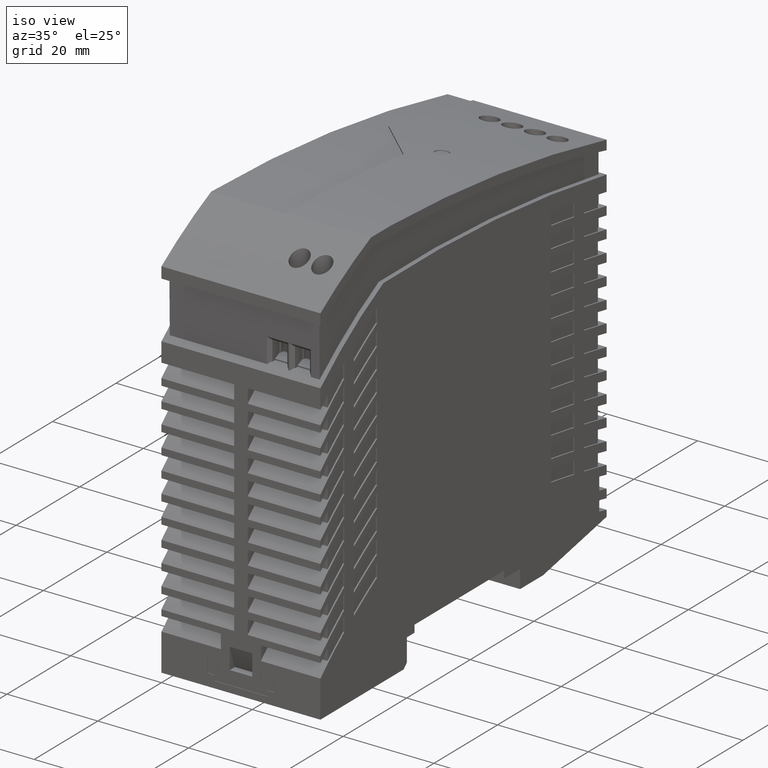
[diagram: clean part render]
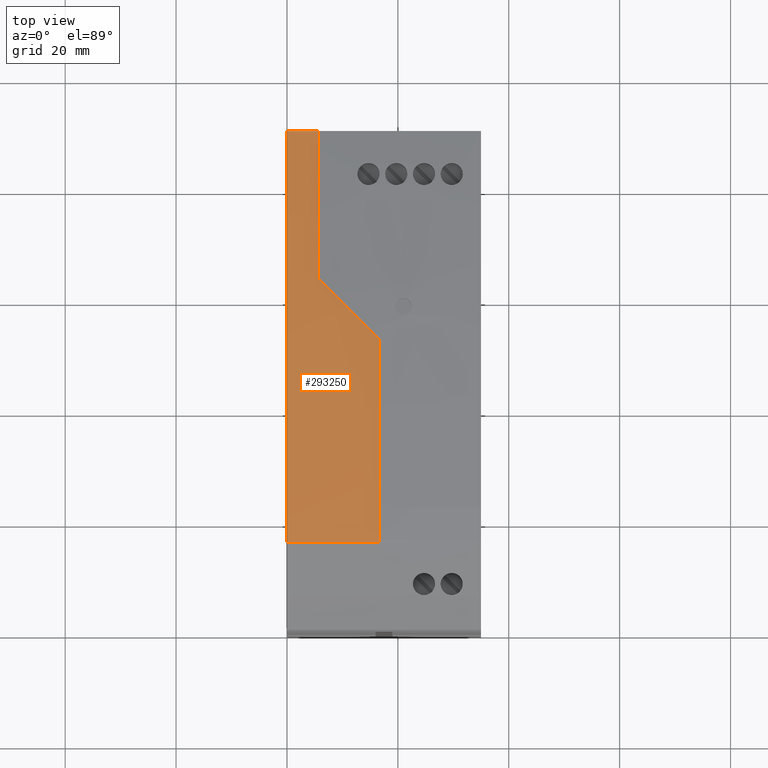
[diagram: tour spotlight — one face highlighted and labeled with its STEP entity id]
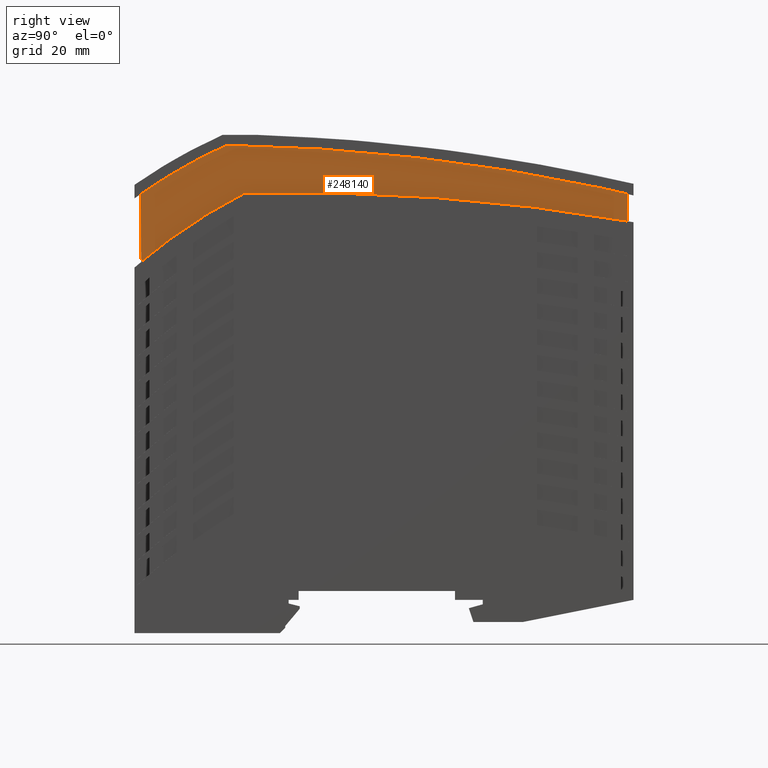
[diagram: tour spotlight — one face highlighted and labeled with its STEP entity id]
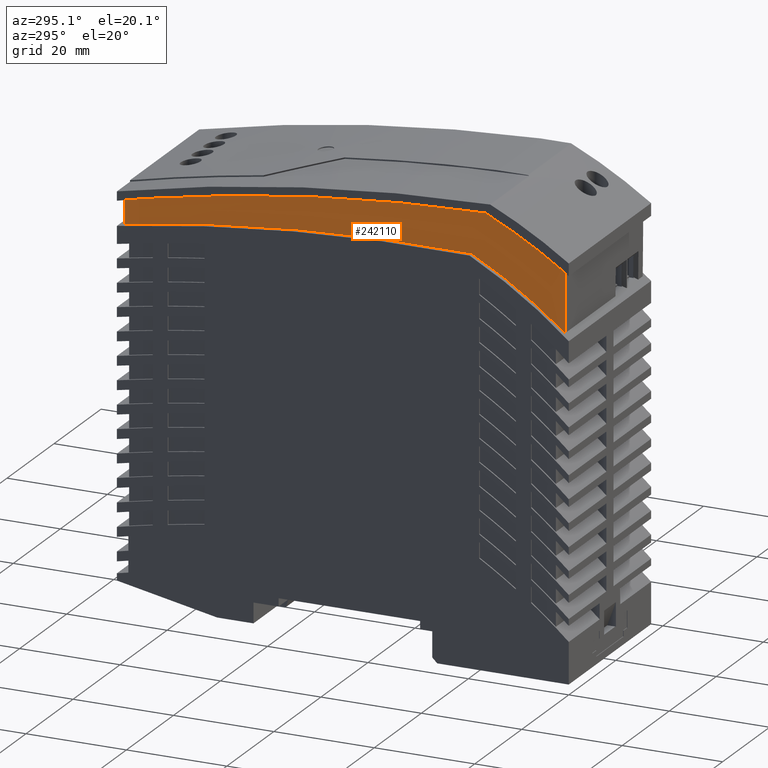
[diagram: tour spotlight — one face highlighted and labeled with its STEP entity id]
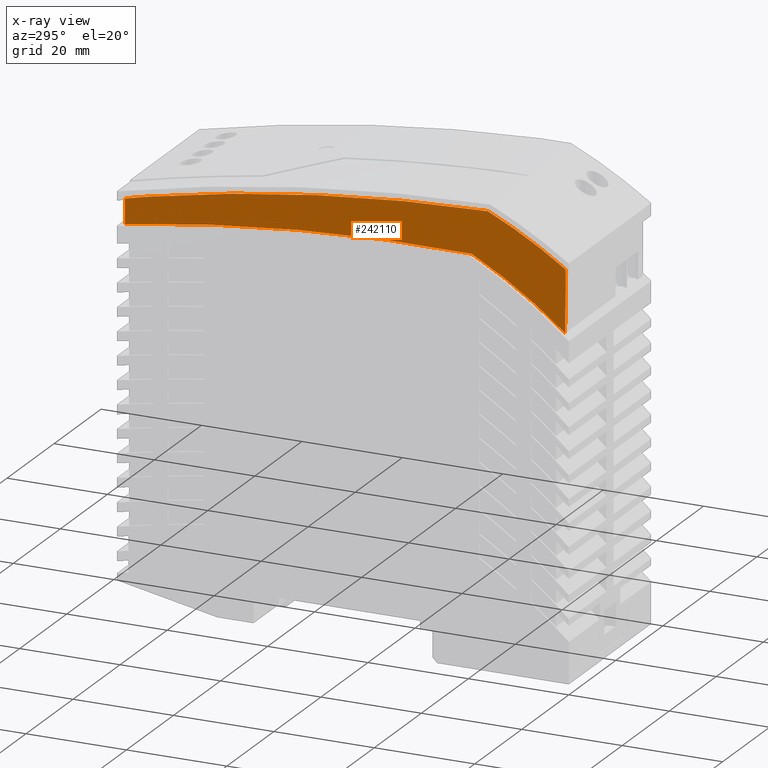
[diagram: x-ray of the same camera — body ghosted, this tour face saturated]
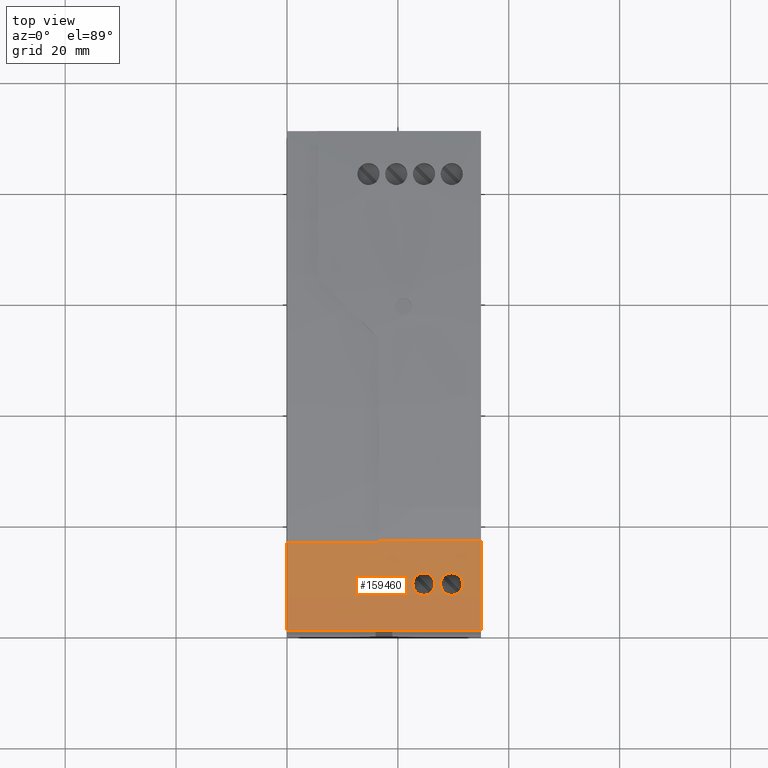
[diagram: tour spotlight — one face highlighted and labeled with its STEP entity id]
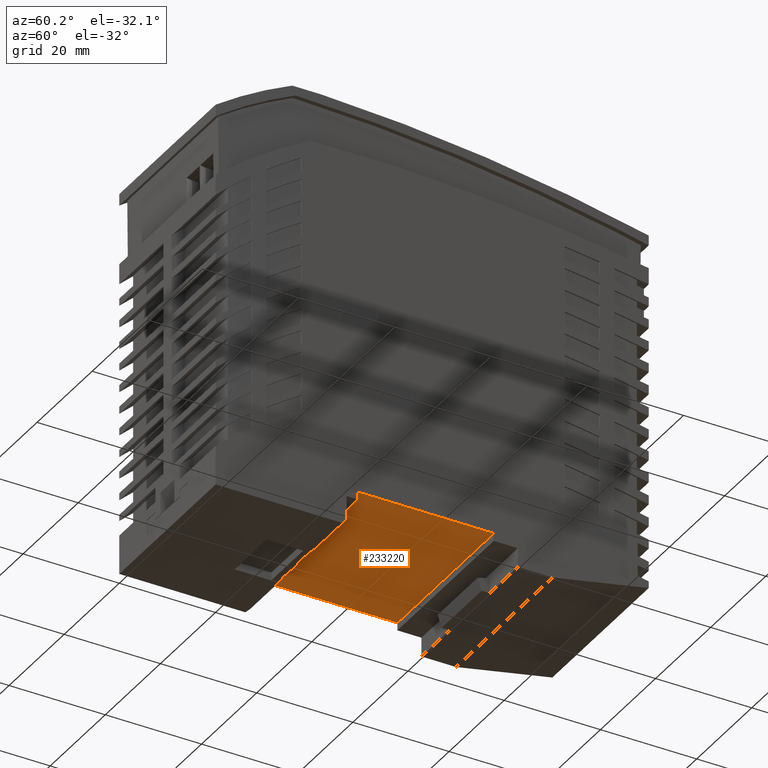
[diagram: tour spotlight — one face highlighted and labeled with its STEP entity id]
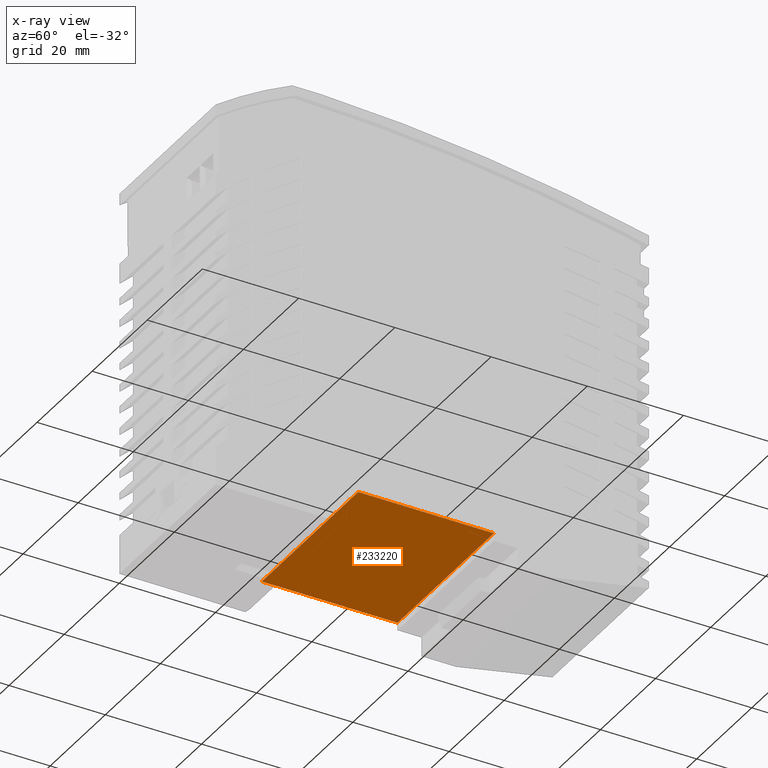
[diagram: x-ray of the same camera — body ghosted, this tour face saturated]
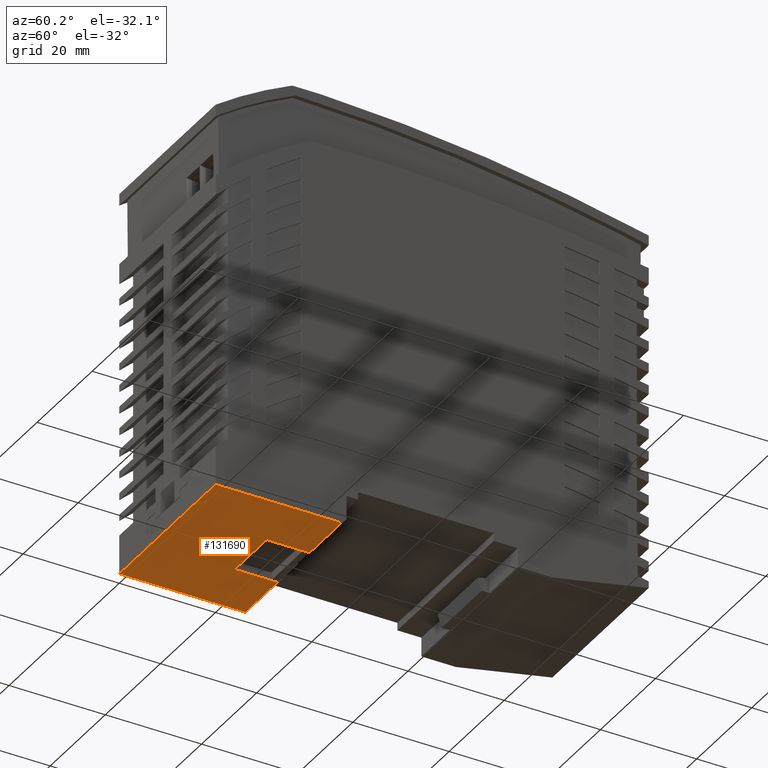
[diagram: tour spotlight — one face highlighted and labeled with its STEP entity id]
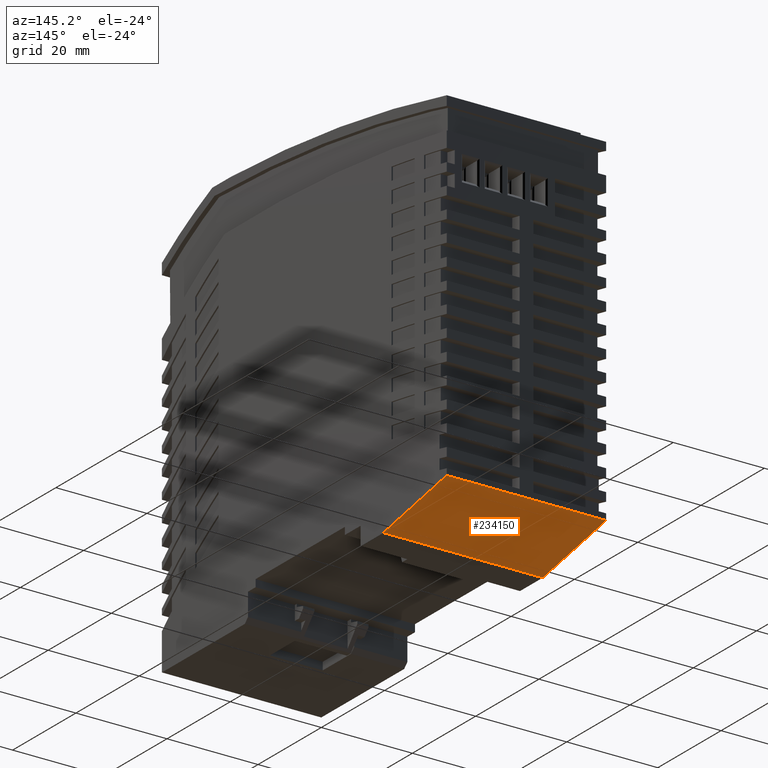
[diagram: tour spotlight — one face highlighted and labeled with its STEP entity id]
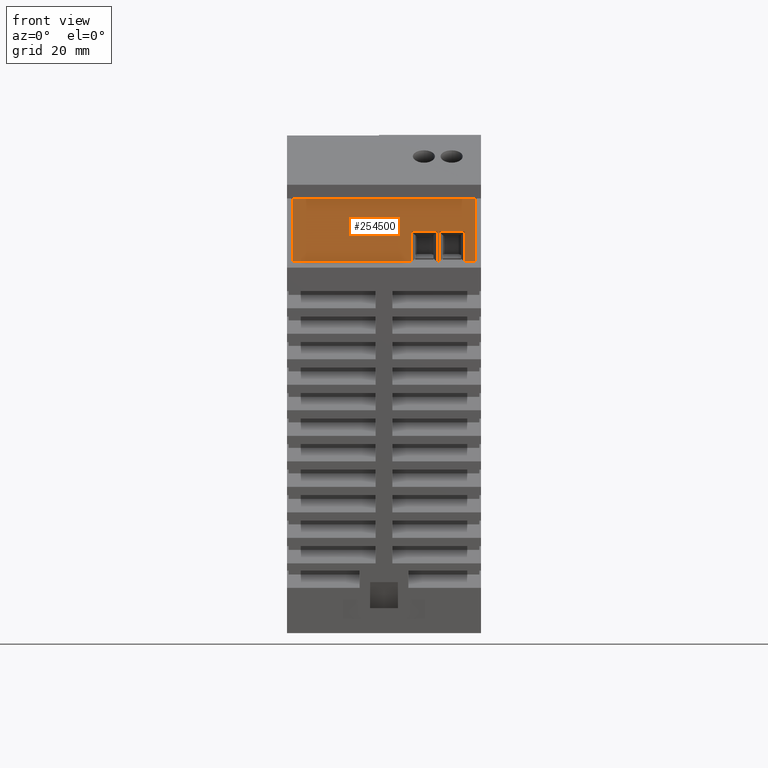
[diagram: tour spotlight — one face highlighted and labeled with its STEP entity id]
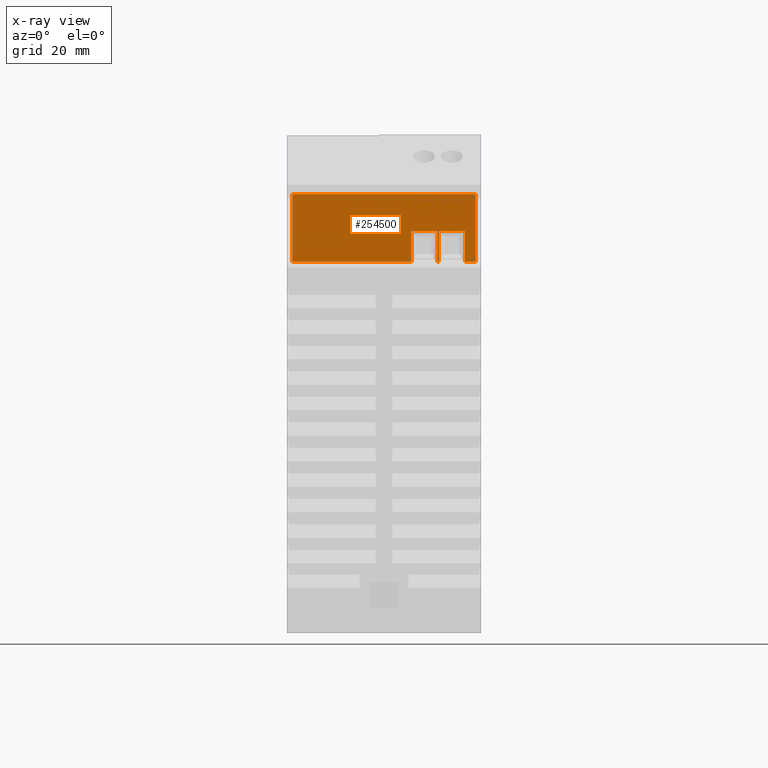
[diagram: x-ray of the same camera — body ghosted, this tour face saturated]
A machine part: a face-by-face anatomy tour. The part has 779 B-rep faces; the first image is the clean iso view, then the 8 largest visible faces are spotlighted one at a time (largest first), each with its STEP entity span.

Face 1 — top view, entity #293250. In plain terms, the highlighted cylindrical surface (partial cylindrical patch) has radius 349.75 mm, axis along (-1, 0, 0).
Definition (entity closure, byte-faithful):
#155950=CARTESIAN_POINT('',(44.9984763926466,80.7724420598919,-21.5));
#155960=VERTEX_POINT('',#155950);
#155990=CARTESIAN_POINT('',(-34.0174223565832,-259.934984106389,-21.5));
#156000=DIRECTION('',(0.,0.,-1.));
#156010=DIRECTION('',(0.149866758396655,0.988706202432087,0.));
#156020=AXIS2_PLACEMENT_3D('',#155990,#156000,#156010);
#156030=CIRCLE('',#156020,349.75);
#156040=CARTESIAN_POINT('',(-29.345667163846,89.783813220005,-21.5));
#156050=VERTEX_POINT('',#156040);
#156060=EDGE_CURVE('',#156050,#155960,#156030,.T.);
#158080=CARTESIAN_POINT('',(-29.345667163846,89.7838132200049,1.));
#158090=DIRECTION('',(0.,0.,1.));
#158100=VECTOR('',#158090,1.);
#158110=LINE('',#158080,#158100);
#158120=CARTESIAN_POINT('',(-29.345667163846,89.7838132200049,-4.9));
#158130=VERTEX_POINT('',#158120);
#158140=EDGE_CURVE('',#156050,#158130,#158110,.T.);
#260160=CARTESIAN_POINT('',(44.9984763926468,80.7724420598919,-15.9));
#260170=VERTEX_POINT('',#260160);
#260220=CARTESIAN_POINT('',(44.9984763926468,80.7724420598918,-4.9));
#260230=DIRECTION('',(0.,0.,-1.));
#260240=VECTOR('',#260230,1.);
#260250=LINE('',#260220,#260240);
#260260=EDGE_CURVE('',#260170,#155960,#260250,.T.);
#292900=CARTESIAN_POINT('',(-34.0174223565832,-259.934984106389,-4.9));
#292910=DIRECTION('',(0.,0.,-1.));
#292920=DIRECTION('',(0.149866758396655,0.988706202432087,0.));
#292930=AXIS2_PLACEMENT_3D('',#292900,#292910,#292920);
#292940=CYLINDRICAL_SURFACE('',#292930,349.75);
#292950=ORIENTED_EDGE('',*,*,#260260,.T.);
#292960=CARTESIAN_POINT('',(-34.0174223565832,-259.934984106389,-15.9));
#292970=DIRECTION('',(0.,0.,-1.));
#292980=DIRECTION('',(0.149866758396655,0.988706202432087,0.));
#292990=AXIS2_PLACEMENT_3D('',#292960,#292970,#292980);
#293000=CIRCLE('',#292990,349.75);
#293010=CARTESIAN_POINT('',(18.3984763926468,85.8650101942338,-15.9));
#293020=VERTEX_POINT('',#293010);
#293030=EDGE_CURVE('',#293020,#260170,#293000,.T.);
#293040=ORIENTED_EDGE('',*,*,#293030,.T.);
#293050=CARTESIAN_POINT('',(-34.0174223565832,-259.934984106389,
36.51589874923));
#293060=DIRECTION('',(-0.707106781186548,0.,-0.707106781186548));
#293070=DIRECTION('',(0.707106781186548,-2.59033395531104E-17,
-0.707106781186548));
#293080=AXIS2_PLACEMENT_3D('',#293050,#293060,#293070);
#293090=ELLIPSE('',#293080,494.62119343999,349.75);
#293100=CARTESIAN_POINT('',(7.39847639264678,87.3542121419162,-4.9));
#293110=VERTEX_POINT('',#293100);
#293120=EDGE_CURVE('',#293110,#293020,#293090,.T.);
#293130=ORIENTED_EDGE('',*,*,#293120,.T.);
#293140=CARTESIAN_POINT('',(-34.0174223565832,-259.934984106389,-4.9));
#293150=DIRECTION('',(0.,0.,-1.));
#293160=DIRECTION('',(0.149866758396655,0.988706202432087,0.));
#293170=AXIS2_PLACEMENT_3D('',#293140,#293150,#293160);
#293180=CIRCLE('',#293170,349.75);
#293190=EDGE_CURVE('',#158130,#293110,#293180,.T.);
#293200=ORIENTED_EDGE('',*,*,#293190,.T.);
#293210=ORIENTED_EDGE('',*,*,#158140,.T.);
#293220=ORIENTED_EDGE('',*,*,#156060,.F.);
#293230=EDGE_LOOP('',(#293220,#293210,#293200,#293130,#293040,#292950));
#293240=FACE_OUTER_BOUND('',#293230,.T.);
#293250=ADVANCED_FACE('',(#293240),#292940,.T.);

Face 2 — right view, entity #248140. In plain terms, the highlighted planar face has unit normal (1, 0, 0).
Definition (entity closure, byte-faithful):
#243480=CARTESIAN_POINT('',(-43.8004748452349,66.9911660149067,12.5));
#243490=VERTEX_POINT('',#243480);
#243520=CARTESIAN_POINT('',(19.7066423710768,-8.36763282685864,12.5));
#243530=DIRECTION('',(0.,0.,1.));
#243540=DIRECTION('',(-0.455955103889732,0.890002777095051,0.));
#243550=AXIS2_PLACEMENT_3D('',#243520,#243530,#243540);
#243560=CIRCLE('',#243550,98.55);
#243570=CARTESIAN_POINT('',(-25.2277331172552,79.3421408558592,12.5));
#243580=VERTEX_POINT('',#243570);
#243590=EDGE_CURVE('',#243580,#243490,#243560,.T.);
#247490=CARTESIAN_POINT('',(8.1380492309038,82.0977916081144,12.5));
#247500=DIRECTION('',(0.,0.,1.));
#247510=DIRECTION('',(1.,0.,0.));
#247520=AXIS2_PLACEMENT_3D('',#247490,#247500,#247510);
#247530=PLANE('',#247520);
#247540=CARTESIAN_POINT('',(43.2128045815677,0.,12.5));
#247550=DIRECTION('',(0.00872653549837375,0.999961923064171,0.));
#247560=VECTOR('',#247550,1.);
#247570=LINE('',#247540,#247560);
#247580=CARTESIAN_POINT('',(43.8615452371132,74.338316002966,12.5));
#247590=VERTEX_POINT('',#247580);
#247600=CARTESIAN_POINT('',(43.9042289013603,79.229379471612,12.5));
#247610=VERTEX_POINT('',#247600);
#247620=EDGE_CURVE('',#247590,#247610,#247570,.T.);
#247630=ORIENTED_EDGE('',*,*,#247620,.T.);
#247640=CARTESIAN_POINT('',(-15.7001371396532,-268.577429468789,12.5));
#247650=DIRECTION('',(0.,0.,1.));
#247660=DIRECTION('',(0.171523095912363,0.985180099052269,0.));
#247670=AXIS2_PLACEMENT_3D('',#247640,#247650,#247660);
#247680=CIRCLE('',#247670,348.05);
#247690=EDGE_CURVE('',#247590,#243580,#247680,.T.);
#247700=ORIENTED_EDGE('',*,*,#247690,.F.);
#247710=ORIENTED_EDGE('',*,*,#243590,.F.);
#247720=CARTESIAN_POINT('',(-43.215851796274,0.,12.5));
#247730=DIRECTION('',(0.00872653549837375,-0.999961923064171,0.));
#247740=VECTOR('',#247730,1.);
#247750=LINE('',#247720,#247740);
#247760=CARTESIAN_POINT('',(-43.9071485745402,79.2147646602632,12.5));
#247770=VERTEX_POINT('',#247760);
#247780=EDGE_CURVE('',#247770,#243490,#247750,.T.);
#247790=ORIENTED_EDGE('',*,*,#247780,.T.);
#247800=CARTESIAN_POINT('',(0.,110.04848302035,12.5));
#247810=DIRECTION('',(-0.818366609781339,-0.574696521648599,0.));
#247820=VECTOR('',#247810,1.);
#247830=LINE('',#247800,#247820);
#247840=CARTESIAN_POINT('',(-43.8015236073672,79.2889396088841,12.5));
#247850=VERTEX_POINT('',#247840);
#247860=EDGE_CURVE('',#247850,#247770,#247830,.T.);
#247870=ORIENTED_EDGE('',*,*,#247860,.T.);
#247880=CARTESIAN_POINT('',(12.017640978483,-1.26055365418858,12.5));
#247890=DIRECTION('',(0.,0.,1.));
#247900=DIRECTION('',(0.,1.,0.));
#247910=AXIS2_PLACEMENT_3D('',#247880,#247890,#247900);
#247920=CIRCLE('',#247910,97.9999999999999);
#247930=CARTESIAN_POINT('',(-28.3867095319688,88.0226388280952,12.5));
#247940=VERTEX_POINT('',#247930);
#247950=EDGE_CURVE('',#247940,#247850,#247920,.T.);
#247960=ORIENTED_EDGE('',*,*,#247950,.T.);
#247970=CARTESIAN_POINT('',(-33.8174223565965,-259.934984106387,12.5));
#247980=DIRECTION('',(0.,0.,1.));
#247990=DIRECTION('',(0.,1.,0.));
#248000=AXIS2_PLACEMENT_3D('',#247970,#247980,#247990);
#248010=CIRCLE('',#248000,347.999999999998);
#248020=CARTESIAN_POINT('',(39.218210283461,80.3146248057549,12.5));
#248030=VERTEX_POINT('',#248020);
#248040=EDGE_CURVE('',#248030,#247940,#248010,.T.);
#248050=ORIENTED_EDGE('',*,*,#248040,.T.);
#248060=CARTESIAN_POINT('',(0.,89.3972561809237,12.5));
#248070=DIRECTION('',(0.974215235442107,-0.225620644074253,0.));
#248080=VECTOR('',#248070,1.);
#248090=LINE('',#248060,#248080);
#248100=EDGE_CURVE('',#248030,#247610,#248090,.T.);
#248110=ORIENTED_EDGE('',*,*,#248100,.F.);
#248120=EDGE_LOOP('',(#248110,#248050,#247960,#247870,#247790,#247710,
#247700,#247630));
#248130=FACE_OUTER_BOUND('',#248120,.T.);
#248140=ADVANCED_FACE('',(#248130),#247530,.T.);

Face 3 — auxiliary view, entity #242110. An x-ray twin of the same camera follows (body ghosted, this face saturated) — the face is partly hidden behind the body. In plain terms, the highlighted planar face has unit normal (-1, 0, 0).
Definition (entity closure, byte-faithful):
#151480=CARTESIAN_POINT('',(-28.3867095319683,88.0226388280955,-20.5));
#151490=VERTEX_POINT('',#151480);
#151540=CARTESIAN_POINT('',(-33.8174223565965,-259.934984106387,-20.5));
#151550=DIRECTION('',(0.,0.,1.));
#151560=DIRECTION('',(0.,1.,0.));
#151570=AXIS2_PLACEMENT_3D('',#151540,#151550,#151560);
#151580=CIRCLE('',#151570,347.999999999998);
#151590=CARTESIAN_POINT('',(39.218210283461,80.3146248057549,-20.5));
#151600=VERTEX_POINT('',#151590);
#151610=EDGE_CURVE('',#151600,#151490,#151580,.T.);
#152350=CARTESIAN_POINT('',(-43.8015236073671,79.288939608884,-20.5));
#152360=VERTEX_POINT('',#152350);
#152410=CARTESIAN_POINT('',(12.017640978483,-1.26055365418858,-20.5));
#152420=DIRECTION('',(0.,0.,1.));
#152430=DIRECTION('',(0.,1.,0.));
#152440=AXIS2_PLACEMENT_3D('',#152410,#152420,#152430);
#152450=CIRCLE('',#152440,97.9999999999999);
#152460=EDGE_CURVE('',#151490,#152360,#152450,.T.);
#241540=CARTESIAN_POINT('',(8.13804923091996,82.0977916081129,-20.5));
#241550=DIRECTION('',(0.,0.,-1.));
#241560=DIRECTION('',(-1.,0.,0.));
#241570=AXIS2_PLACEMENT_3D('',#241540,#241550,#241560);
#241580=PLANE('',#241570);
#241590=CARTESIAN_POINT('',(0.,89.3972561809237,-20.5));
#241600=DIRECTION('',(0.974215235442107,-0.225620644074253,0.));
#241610=VECTOR('',#241600,1.);
#241620=LINE('',#241590,#241610);
#241630=CARTESIAN_POINT('',(43.9042289013603,79.229379471612,-20.5));
#241640=VERTEX_POINT('',#241630);
#241650=EDGE_CURVE('',#151600,#241640,#241620,.T.);
#241660=ORIENTED_EDGE('',*,*,#241650,.T.);
#241670=ORIENTED_EDGE('',*,*,#151610,.F.);
#241680=ORIENTED_EDGE('',*,*,#152460,.F.);
#241690=CARTESIAN_POINT('',(0.,110.04848302035,-20.5));
#241700=DIRECTION('',(-0.818366609781339,-0.574696521648599,0.));
#241710=VECTOR('',#241700,1.);
#241720=LINE('',#241690,#241710);
#241730=CARTESIAN_POINT('',(-43.9071485745402,79.2147646602632,-20.5));
#241740=VERTEX_POINT('',#241730);
#241750=EDGE_CURVE('',#152360,#241740,#241720,.T.);
#241760=ORIENTED_EDGE('',*,*,#241750,.F.);
#241770=CARTESIAN_POINT('',(-43.215851796274,0.,-20.5));
#241780=DIRECTION('',(0.00872653549837375,-0.999961923064171,0.));
#241790=VECTOR('',#241780,1.);
#241800=LINE('',#241770,#241790);
#241810=CARTESIAN_POINT('',(-43.8004748452349,66.9911660149067,-20.5));
#241820=VERTEX_POINT('',#241810);
#241830=EDGE_CURVE('',#241740,#241820,#241800,.T.);
#241840=ORIENTED_EDGE('',*,*,#241830,.F.);
#241850=CARTESIAN_POINT('',(19.7066423710768,-8.36763282685864,-20.5));
#241860=DIRECTION('',(0.,0.,1.));
#241870=DIRECTION('',(-0.455955103889732,0.890002777095051,0.));
#241880=AXIS2_PLACEMENT_3D('',#241850,#241860,#241870);
#241890=CIRCLE('',#241880,98.55);
#241900=CARTESIAN_POINT('',(-25.2277331172552,79.3421408558592,-20.5));
#241910=VERTEX_POINT('',#241900);
#241920=EDGE_CURVE('',#241910,#241820,#241890,.T.);
#241930=ORIENTED_EDGE('',*,*,#241920,.T.);
#241940=CARTESIAN_POINT('',(-15.7001371396532,-268.577429468789,-20.5));
#241950=DIRECTION('',(0.,0.,1.));
#241960=DIRECTION('',(0.171523095912363,0.985180099052269,0.));
#241970=AXIS2_PLACEMENT_3D('',#241940,#241950,#241960);
#241980=CIRCLE('',#241970,348.05);
#241990=CARTESIAN_POINT('',(43.8615452371132,74.338316002966,-20.5));
#242000=VERTEX_POINT('',#241990);
#242010=EDGE_CURVE('',#242000,#241910,#241980,.T.);
#242020=ORIENTED_EDGE('',*,*,#242010,.T.);
#242030=CARTESIAN_POINT('',(43.2128045815677,0.,-20.5));
#242040=DIRECTION('',(0.00872653549837375,0.999961923064171,0.));
#242050=VECTOR('',#242040,1.);
#242060=LINE('',#242030,#242050);
#242070=EDGE_CURVE('',#242000,#241640,#242060,.T.);
#242080=ORIENTED_EDGE('',*,*,#242070,.F.);
#242090=EDGE_LOOP('',(#242080,#242020,#241930,#241840,#241760,#241680,
#241670,#241660));
#242100=FACE_OUTER_BOUND('',#242090,.T.);
#242110=ADVANCED_FACE('',(#242100),#241580,.T.);

Face 4 — top view, entity #159460. In plain terms, the highlighted cylindrical surface (partial cylindrical patch) has radius 100 mm, axis along (1, 0, 0).
Definition (entity closure, byte-faithful):
#33740=CARTESIAN_POINT('',(12.017640978482,-1.26055365418718,13.5));
#33750=DIRECTION('',(0.,0.,1.));
#33760=DIRECTION('',(0.,1.,0.));
#33770=AXIS2_PLACEMENT_3D('',#33740,#33750,#33760);
#33780=CIRCLE('',#33770,99.9999999999983);
#33790=CARTESIAN_POINT('',(-29.0910272099849,89.8990722762113,13.5));
#33800=VERTEX_POINT('',#33790);
#33810=CARTESIAN_POINT('',(-45.0015236073532,80.8906171830753,13.5));
#33820=VERTEX_POINT('',#33810);
#33830=EDGE_CURVE('',#33800,#33820,#33780,.T.);
#146840=CARTESIAN_POINT('',(-36.8015236073671,78.9377474108008,3.2));
#146850=DIRECTION('',(0.,-1.,0.));
#146860=DIRECTION('',(1.,0.,0.));
#146870=AXIS2_PLACEMENT_3D('',#146840,#146850,#146860);
#146880=CYLINDRICAL_SURFACE('',#146870,2.);
#146890=CARTESIAN_POINT('',(12.017640978482,-1.26055365418719,
8.11740000000003));
#146900=DIRECTION('',(0.,0.,1.));
#146910=DIRECTION('',(0.,1.,0.));
#146920=AXIS2_PLACEMENT_3D('',#146890,#146900,#146910);
#146930=CYLINDRICAL_SURFACE('',#146920,99.9999999999983);
#146940=CARTESIAN_POINT('',(-38.4414010123486,85.0753315927208,
4.3449026581467));
#146950=CARTESIAN_POINT('',(-38.497525468706,85.0425296321924,
4.2645139655425));
#146960=CARTESIAN_POINT('',(-38.5481122803073,85.0128912388115,
4.17957684706814));
#146970=CARTESIAN_POINT('',(-38.5928971896197,84.9866110895585,
4.08937095118269));
#146980=CARTESIAN_POINT('',(-38.6376169850207,84.9603691496787,
3.99929620792909));
#146990=CARTESIAN_POINT('',(-38.6760595922823,84.937764315567,
3.90468123091588));
#147000=CARTESIAN_POINT('',(-38.7071128022955,84.9194866908906,
3.80723127403962));
#147010=CARTESIAN_POINT('',(-38.738196116276,84.9011913473048,
3.7096868460827));
#147020=CARTESIAN_POINT('',(-38.7617583110573,84.887301492932,
3.60994003546521));
#147030=CARTESIAN_POINT('',(-38.7776100394539,84.8779538440539,
3.50835436258056));
#147040=CARTESIAN_POINT('',(-38.7934808829299,84.8685949231526,
3.4066461908644));
#147050=CARTESIAN_POINT('',(-38.8015236073671,84.8638477126498,
3.30310828366254));
#147060=CARTESIAN_POINT('',(-38.8015236073671,84.8638477126498,3.2));
#147070=B_SPLINE_CURVE_WITH_KNOTS('',3,(#146940,#146950,#146960,#146970,
#146980,#146990,#147000,#147010,#147020,#147030,#147040,#147050,#147060)
,.UNSPECIFIED.,.F.,.F.,(4,3,3,3,4),(0.,0.310351874239904,
0.622414247669837,0.932684386805459,1.24270084485499),.UNSPECIFIED.);
#147080=SURFACE_CURVE('',#147070,(#146880,#146930),.CURVE_3D.);
#147090=CARTESIAN_POINT('',(-38.4414010123486,85.0753315927208,
4.34490265814672));
#147100=VERTEX_POINT('',#147090);
#147110=CARTESIAN_POINT('',(-38.8015236073671,84.8638477126498,3.2));
#147120=VERTEX_POINT('',#147110);
#147130=EDGE_CURVE('',#147100,#147120,#147080,.T.);
#147550=CARTESIAN_POINT('',(-34.8015236073671,87.1021411184533,3.2));
#147560=VERTEX_POINT('',#147550);
#147590=CARTESIAN_POINT('',(-34.8015236073671,87.1021411184533,3.2));
#147600=CARTESIAN_POINT('',(-34.8015236073671,87.1021411184533,
3.24570333218328));
#147610=CARTESIAN_POINT('',(-34.8030929677169,87.1013096419366,
3.29136936311508));
#147620=CARTESIAN_POINT('',(-34.8062074556467,87.0996592123366,
3.33679712966262));
#147630=CARTESIAN_POINT('',(-34.8347699435654,87.0845233773061,
3.75340816249707));
#147640=CARTESIAN_POINT('',(-34.9938938861023,87.0003906195661,
4.1426963124486));
#147650=CARTESIAN_POINT('',(-35.2411162250705,86.8678178703995,
4.45105107860603));
#147660=CARTESIAN_POINT('',(-35.5149705844886,86.7209637250547,
4.79262335444479));
#147670=CARTESIAN_POINT('',(-35.8831353189616,86.5216469238898,
5.02226769500543));
#147680=CARTESIAN_POINT('',(-36.2738715365213,86.3061627340214,
5.12914055790049));
#147690=CARTESIAN_POINT('',(-36.6634465287666,86.0913189396037,
5.23569580633283));
#147700=CARTESIAN_POINT('',(-37.0746906086586,85.8608345571913,
5.22210865513053));
#147710=CARTESIAN_POINT('',(-37.456775731933,85.6433132975421,
5.08961494840929));
#147720=CARTESIAN_POINT('',(-37.8397382150351,85.4252925564861,
4.95681700410168));
#147730=CARTESIAN_POINT('',(-38.1905282880909,85.2219542547977,
4.70423496391865));
#147740=CARTESIAN_POINT('',(-38.4414010123486,85.0753315927208,
4.3449026581467));
#147750=B_SPLINE_CURVE_WITH_KNOTS('',3,(#147590,#147600,#147610,#147620,
#147630,#147640,#147650,#147660,#147670,#147680,#147690,#147700,#147710,
#147720,#147730,#147740),.UNSPECIFIED.,.F.,.F.,(4,3,3,3,3,4),(0.,
0.136934001176904,1.37776613446779,2.7553206008613,4.12774155627872,
5.50714320491792),.UNSPECIFIED.);
#147760=SURFACE_CURVE('',#147750,(#146880,#146930),.CURVE_3D.);
#147770=EDGE_CURVE('',#147560,#147100,#147760,.T.);
#155690=CARTESIAN_POINT('',(-45.0015236073532,80.8906171830753,-21.5));
#155700=VERTEX_POINT('',#155690);
#156040=CARTESIAN_POINT('',(-29.345667163846,89.783813220005,-21.5));
#156050=VERTEX_POINT('',#156040);
#156080=CARTESIAN_POINT('',(12.017640978482,-1.26055365418718,-21.5));
#156090=DIRECTION('',(0.,0.,1.));
#156100=DIRECTION('',(0.,1.,0.));
#156110=AXIS2_PLACEMENT_3D('',#156080,#156090,#156100);
#156120=CIRCLE('',#156110,99.9999999999983);
#156130=EDGE_CURVE('',#156050,#155700,#156120,.T.);
#158030=CARTESIAN_POINT('',(12.017640978482,-1.26055365418718,1.));
#158040=DIRECTION('',(0.,0.,1.));
#158050=DIRECTION('',(0.,1.,0.));
#158060=AXIS2_PLACEMENT_3D('',#158030,#158040,#158050);
#158070=CYLINDRICAL_SURFACE('',#158060,99.9999999999983);
#158080=CARTESIAN_POINT('',(-29.345667163846,89.7838132200049,1.));
#158090=DIRECTION('',(0.,0.,1.));
#158100=VECTOR('',#158090,1.);
#158110=LINE('',#158080,#158100);
#158120=CARTESIAN_POINT('',(-29.345667163846,89.7838132200049,-4.9));
#158130=VERTEX_POINT('',#158120);
#158140=EDGE_CURVE('',#156050,#158130,#158110,.T.);
#158150=ORIENTED_EDGE('',*,*,#158140,.F.);
#158160=CARTESIAN_POINT('',(12.017640978482,-1.26055365418718,-4.9));
#158170=DIRECTION('',(0.,0.,1.));
#158180=DIRECTION('',(0.,1.,0.));
#158190=AXIS2_PLACEMENT_3D('',#158160,#158170,#158180);
#158200=CIRCLE('',#158190,99.9999999999983);
#158210=CARTESIAN_POINT('',(-29.0910272099849,89.8990722762113,-4.9));
#158220=VERTEX_POINT('',#158210);
#158230=EDGE_CURVE('',#158220,#158130,#158200,.T.);
#158240=ORIENTED_EDGE('',*,*,#158230,.T.);
#158250=CARTESIAN_POINT('',(-29.0910272099849,89.8990722762113,1.));
#158260=DIRECTION('',(0.,0.,-1.));
#158270=VECTOR('',#158260,1.);
#158280=LINE('',#158250,#158270);
#158290=EDGE_CURVE('',#33800,#158220,#158280,.T.);
#158300=ORIENTED_EDGE('',*,*,#158290,.T.);
#158310=ORIENTED_EDGE('',*,*,#33830,.F.);
#158320=CARTESIAN_POINT('',(-45.0015236073532,80.8906171830753,13.5));
#158330=DIRECTION('',(0.,0.,1.));
#158340=VECTOR('',#158330,1.);
#158350=LINE('',#158320,#158340);
#158360=EDGE_CURVE('',#155700,#33820,#158350,.T.);
#158370=ORIENTED_EDGE('',*,*,#158360,.T.);
#158380=ORIENTED_EDGE('',*,*,#156130,.T.);
#158390=EDGE_LOOP('',(#158380,#158370,#158310,#158300,#158240,#158150));
#158400=FACE_OUTER_BOUND('',#158390,.T.);
#158410=CARTESIAN_POINT('',(12.017640978482,-1.26055365418718,13.5));
#158420=DIRECTION('',(0.,0.,1.));
#158430=DIRECTION('',(0.,1.,0.));
#158440=AXIS2_PLACEMENT_3D('',#158410,#158420,#158430);
#158450=CYLINDRICAL_SURFACE('',#158440,99.9999999999983);
#158460=CARTESIAN_POINT('',(-36.8015236073671,78.9377474108009,8.2));
#158470=DIRECTION('',(0.,-1.,0.));
#158480=DIRECTION('',(1.,0.,0.));
#158490=AXIS2_PLACEMENT_3D('',#158460,#158470,#158480);
#158500=CYLINDRICAL_SURFACE('',#158490,2.);
#158510=CARTESIAN_POINT('',(-38.4414010123466,85.075331592722,
9.34490265814964));
#158520=CARTESIAN_POINT('',(-38.1916399297802,85.2213045553765,
9.70264272716635));
#158530=CARTESIAN_POINT('',(-37.8405312536078,85.4248265797964,
9.95597746596343));
#158540=CARTESIAN_POINT('',(-37.4592635155472,85.6418969538847,
10.0887504369787));
#158550=CARTESIAN_POINT('',(-37.0755907906413,85.8603365793993,
10.2223609224669));
#158560=CARTESIAN_POINT('',(-36.6638870952883,86.0910703282855,
10.2356051164462));
#158570=CARTESIAN_POINT('',(-36.2748448652582,86.3056259531921,
10.1294065156443));
#158580=CARTESIAN_POINT('',(-35.8823355676247,86.5220936555002,
10.022261493863));
#158590=CARTESIAN_POINT('',(-35.5150580771803,86.7209175869031,
9.79284153816682));
#158600=CARTESIAN_POINT('',(-35.2409214758194,86.8679223042267,
9.45080813357369));
#158610=CARTESIAN_POINT('',(-34.9942751900424,87.0001854436235,
9.14307371053144));
#158620=CARTESIAN_POINT('',(-34.8347585509382,87.0845294180424,
8.75362569495889));
#158630=CARTESIAN_POINT('',(-34.8061988678249,87.099663763195,
8.33667181044786));
#158640=CARTESIAN_POINT('',(-34.8030854753445,87.1013136119069,
8.29121818676455));
#158650=CARTESIAN_POINT('',(-34.8015236073671,87.1021411184533,
8.24559271433282));
#158660=CARTESIAN_POINT('',(-34.8015236073671,87.1021411184533,8.2));
#158670=B_SPLINE_CURVE_WITH_KNOTS('',3,(#158510,#158520,#158530,#158540,
#158550,#158560,#158570,#158580,#158590,#158600,#158610,#158620,#158630,
#158640,#158650,#158660),.UNSPECIFIED.,.F.,.F.,(4,3,3,3,3,4),(0.,
1.37640965345925,2.75067905799001,4.12970540128264,5.37033487401065,
5.50714317967587),.UNSPECIFIED.);
#158680=SURFACE_CURVE('',#158670,(#158450,#158500),.CURVE_3D.);
#158690=CARTESIAN_POINT('',(-38.4414010123466,85.075331592722,
9.34490265814962));
#158700=VERTEX_POINT('',#158690);
#158710=CARTESIAN_POINT('',(-34.8015236073671,87.1021411184533,8.2));
#158720=VERTEX_POINT('',#158710);
#158730=EDGE_CURVE('',#158700,#158720,#158680,.T.);
#158740=ORIENTED_EDGE('',*,*,#158730,.F.);
#158750=CARTESIAN_POINT('',(-34.8015236073671,87.1021411184533,8.2));
#158760=CARTESIAN_POINT('',(-34.8015236073671,87.1021411184533,
7.9172872689588));
#158770=CARTESIAN_POINT('',(-34.8618106636273,87.0702641101032,
7.6392638737912));
#158780=CARTESIAN_POINT('',(-34.9746908483369,87.0101705383661,
7.38594713283819));
#158790=CARTESIAN_POINT('',(-35.0864556906266,86.9506707370051,
7.13513335471759));
#158800=CARTESIAN_POINT('',(-35.2477752789304,86.8645176253473,
6.91360186919473));
#158810=CARTESIAN_POINT('',(-35.4401417351855,86.760800913338,
6.73485857402926));
#158820=CARTESIAN_POINT('',(-35.8258464055154,86.5528435542846,
6.37646904459866));
#158830=CARTESIAN_POINT('',(-36.3222718109873,86.2812395930999,
6.19787741695517));
#158840=CARTESIAN_POINT('',(-36.8103010461347,86.008181169045,
6.20001926095066));
#158850=CARTESIAN_POINT('',(-37.298221630768,85.7351835363035,
6.20216062810494));
#158860=CARTESIAN_POINT('',(-37.7899139519458,85.4539201558912,
6.38515360185494));
#158870=CARTESIAN_POINT('',(-38.1694024298831,85.2337275089428,
6.74092237118376));
#158880=CARTESIAN_POINT('',(-38.3597034912399,85.1233080974101,
6.91932877437395));
#158890=CARTESIAN_POINT('',(-38.5182149661032,85.0304885119995,
7.13773019329068));
#158900=CARTESIAN_POINT('',(-38.6296235794948,84.9650492303044,
7.38879688615798));
#158910=CARTESIAN_POINT('',(-38.7416663307256,84.8992374682111,
7.64129265066762));
#158920=CARTESIAN_POINT('',(-38.8015236073671,84.8638477126498,
7.91845230797725));
#158930=CARTESIAN_POINT('',(-38.8015236073671,84.8638477126498,8.2));
#158940=B_SPLINE_CURVE_WITH_KNOTS('',3,(#158750,#158760,#158770,#158780,
#158790,#158800,#158810,#158820,#158830,#158840,#158850,#158860,#158870,
#158880,#158890,#158900,#158910,#158920,#158930),.UNSPECIFIED.,.F.,.F.,(
4,3,3,3,3,3,4),(0.,0.84500756333785,1.68943431270763,3.37484337737721,
5.06208987075319,5.90700425554802,6.75028831396443),.UNSPECIFIED.);
#158950=SURFACE_CURVE('',#158940,(#158450,#158500),.CURVE_3D.);
#158960=CARTESIAN_POINT('',(-38.8015236073671,84.8638477126498,8.2));
#158970=VERTEX_POINT('',#158960);
#158980=EDGE_CURVE('',#158720,#158970,#158950,.T.);
#158990=ORIENTED_EDGE('',*,*,#158980,.F.);
#159000=CARTESIAN_POINT('',(-38.8015236073671,84.8638477126498,8.2));
#159010=CARTESIAN_POINT('',(-38.8015236073671,84.8638477126498,
8.30291970855927));
#159020=CARTESIAN_POINT('',(-38.7935148856833,84.8685748905205,
8.40658960905533));
#159030=CARTESIAN_POINT('',(-38.77753569418,84.8779976848778,
8.5088304272078));
#159040=CARTESIAN_POINT('',(-38.7615569290885,84.8874202277835,
8.61106851701849));
#159050=CARTESIAN_POINT('',(-38.73764590357,84.9015153813996,
8.71162340845735));
#159060=CARTESIAN_POINT('',(-38.7067292453512,84.9197124477178,
8.80843362579134));
#159070=CARTESIAN_POINT('',(-38.6758918301042,84.9378628728498,
8.90499570733787));
#159080=CARTESIAN_POINT('',(-38.6379074511667,84.9601984217421,
8.99860885550979));
#159090=CARTESIAN_POINT('',(-38.5932981280277,84.9863758143853,
9.08856292242724));
#159100=CARTESIAN_POINT('',(-38.5487149271022,85.0125378781378,
9.17846431427196));
#159110=CARTESIAN_POINT('',(-38.4976518360517,85.0424557767477,
9.26433296591512));
#159120=CARTESIAN_POINT('',(-38.4414010123466,85.075331592722,
9.34490265814965));
#159130=B_SPLINE_CURVE_WITH_KNOTS('',3,(#159000,#159010,#159020,#159030,
#159040,#159050,#159060,#159070,#159080,#159090,#159100,#159110,#159120)
,.UNSPECIFIED.,.F.,.F.,(4,3,3,3,4),(0.,0.310500280495427,
0.621568672458265,0.931416759487738,1.24270084360459),.UNSPECIFIED.);
#159140=SURFACE_CURVE('',#159130,(#158450,#158500),.CURVE_3D.);
#159150=EDGE_CURVE('',#158970,#158700,#159140,.T.);
#159160=ORIENTED_EDGE('',*,*,#159150,.F.);
#159170=EDGE_LOOP('',(#159160,#158990,#158740));
#159180=FACE_BOUND('',#159170,.T.);
#159190=CARTESIAN_POINT('',(-38.8015236073671,84.8638477126498,3.2));
#159200=CARTESIAN_POINT('',(-38.8015236073671,84.8638477126498,
2.91759915508747));
#159210=CARTESIAN_POINT('',(-38.7404421313602,84.8999567510371,
2.63843223587455));
#159220=CARTESIAN_POINT('',(-38.6295012324462,84.9651210944961,
2.38852122504005));
#159230=CARTESIAN_POINT('',(-38.5178353889127,85.0307112551301,
2.13697716774191));
#159240=CARTESIAN_POINT('',(-38.3585181299655,85.1239942593898,
1.91835311454325));
#159250=CARTESIAN_POINT('',(-38.1699598082352,85.2334040958938,
1.74144511102476));
#159260=CARTESIAN_POINT('',(-37.7903991705173,85.4536418819271,
1.38533611505636));
#159270=CARTESIAN_POINT('',(-37.2998179867703,85.7342895335559,
1.20219494021424));
#159280=CARTESIAN_POINT('',(-36.8104126189879,86.0081187425111,
1.20001975372945));
#159290=CARTESIAN_POINT('',(-36.3222906568811,86.2812298678817,
1.19785027140499));
#159300=CARTESIAN_POINT('',(-35.8252295299098,86.5531777539622,
1.37690310189351));
#159310=CARTESIAN_POINT('',(-35.4398578332964,86.7609539819011,
1.7351224215876));
#159320=CARTESIAN_POINT('',(-35.2469430083834,86.8649655504365,
1.91444492489157));
#159330=CARTESIAN_POINT('',(-35.0868348665167,86.9504691123241,
2.13416218057571));
#159340=CARTESIAN_POINT('',(-34.974546405634,87.0102474345981,
2.38627135705478));
#159350=CARTESIAN_POINT('',(-34.8618808570722,87.0702265047374,
2.63922716784965));
#159360=CARTESIAN_POINT('',(-34.8015236073671,87.1021411184533,
2.9163591830023));
#159370=CARTESIAN_POINT('',(-34.8015236073671,87.1021411184533,3.2));
#159380=B_SPLINE_CURVE_WITH_KNOTS('',3,(#159190,#159200,#159210,#159220,
#159230,#159240,#159250,#159260,#159270,#159280,#159290,#159300,#159310,
#159320,#159330,#159340,#159350,#159360,#159370),.UNSPECIFIED.,.F.,.F.,(
4,3,3,3,3,3,4),(0.,0.843594027500314,1.68736858919655,3.37531788904383,
5.06127204508721,5.90564525478496,6.75028970198062),.UNSPECIFIED.);
#159390=SURFACE_CURVE('',#159380,(#146880,#146930),.CURVE_3D.);
#159400=EDGE_CURVE('',#147120,#147560,#159390,.T.);
#159410=ORIENTED_EDGE('',*,*,#159400,.T.);
#159420=ORIENTED_EDGE('',*,*,#147130,.T.);
#159430=ORIENTED_EDGE('',*,*,#147770,.T.);
#159440=EDGE_LOOP('',(#159430,#159420,#159410));
#159450=FACE_BOUND('',#159440,.T.);
#159460=ADVANCED_FACE('',(#158400,#159180,#159450),#158070,.T.);

Face 5 — auxiliary view, entity #233220. An x-ray twin of the same camera follows (body ghosted, this face saturated) — the face is partly hidden behind the body. In plain terms, the highlighted planar face has unit normal (0, 0, -1).
Definition (entity closure, byte-faithful):
#196190=CARTESIAN_POINT('',(12.7984763926468,7.62907227621024,13.5));
#196200=VERTEX_POINT('',#196190);
#196230=CARTESIAN_POINT('',(0.,7.62907227621024,13.5));
#196240=DIRECTION('',(1.,0.,0.));
#196250=VECTOR('',#196240,1.);
#196260=LINE('',#196230,#196250);
#196270=CARTESIAN_POINT('',(-15.4015236073532,7.62907227621024,13.5));
#196280=VERTEX_POINT('',#196270);
#196290=EDGE_CURVE('',#196280,#196200,#196260,.T.);
#232780=CARTESIAN_POINT('',(12.7984763926468,7.62907227621024,-21.5));
#232790=VERTEX_POINT('',#232780);
#232820=CARTESIAN_POINT('',(12.7984763926468,7.62907227621024,16.25));
#232830=DIRECTION('',(0.,0.,-1.));
#232840=VECTOR('',#232830,1.);
#232850=LINE('',#232820,#232840);
#232860=EDGE_CURVE('',#196200,#232790,#232850,.T.);
#232990=CARTESIAN_POINT('',(-16.1806586073671,7.62907227621024,
-36.0591349974895));
#233000=DIRECTION('',(0.,-1.,0.));
#233010=DIRECTION('',(1.,0.,0.));
#233020=AXIS2_PLACEMENT_3D('',#232990,#233000,#233010);
#233030=PLANE('',#233020);
#233040=ORIENTED_EDGE('',*,*,#232860,.F.);
#233050=CARTESIAN_POINT('',(0.,7.62907227621024,-21.5));
#233060=DIRECTION('',(-1.,0.,0.));
#233070=VECTOR('',#233060,1.);
#233080=LINE('',#233050,#233070);
#233090=CARTESIAN_POINT('',(-15.4015236073532,7.62907227621024,-21.5));
#233100=VERTEX_POINT('',#233090);
#233110=EDGE_CURVE('',#232790,#233100,#233080,.T.);
#233120=ORIENTED_EDGE('',*,*,#233110,.F.);
#233130=CARTESIAN_POINT('',(-15.4015236073532,7.62907227621024,28.75));
#233140=DIRECTION('',(0.,0.,1.));
#233150=VECTOR('',#233140,1.);
#233160=LINE('',#233130,#233150);
#233170=EDGE_CURVE('',#233100,#196280,#233160,.T.);
#233180=ORIENTED_EDGE('',*,*,#233170,.F.);
#233190=ORIENTED_EDGE('',*,*,#196290,.F.);
#233200=EDGE_LOOP('',(#233190,#233180,#233120,#233040));
#233210=FACE_OUTER_BOUND('',#233200,.T.);
#233220=ADVANCED_FACE('',(#233210),#233030,.T.);

Face 6 — auxiliary view, entity #131690. In plain terms, the highlighted planar face has unit normal (0, 0, -1).
Definition (entity closure, byte-faithful):
#8660=CARTESIAN_POINT('',(-45.0015236073532,0.029072276211352,13.5));
#8670=VERTEX_POINT('',#8660);
#8700=CARTESIAN_POINT('',(-45.0015236073532,0.029072276211352,28.75));
#8710=DIRECTION('',(0.,0.,1.));
#8720=VECTOR('',#8710,1.);
#8730=LINE('',#8700,#8720);
#8740=CARTESIAN_POINT('',(-45.0015236073532,0.029072276211352,-21.5));
#8750=VERTEX_POINT('',#8740);
#8760=EDGE_CURVE('',#8750,#8670,#8730,.T.);
#100220=CARTESIAN_POINT('',(-18.8015236073701,0.029072276211352,16.25));
#100230=DIRECTION('',(0.,0.,-1.));
#100240=VECTOR('',#100230,1.);
#100250=LINE('',#100220,#100240);
#100260=CARTESIAN_POINT('',(-18.8015236073701,0.029072276211352,-9.8));
#100270=VERTEX_POINT('',#100260);
#100280=CARTESIAN_POINT('',(-18.8015236073701,0.029072276211352,-21.5));
#100290=VERTEX_POINT('',#100280);
#100300=EDGE_CURVE('',#100270,#100290,#100250,.T.);
#131160=CARTESIAN_POINT('',(-45.6666036073671,0.029072276211352,
-26.61008));
#131170=DIRECTION('',(0.,-1.,0.));
#131180=DIRECTION('',(1.,0.,0.));
#131190=AXIS2_PLACEMENT_3D('',#131160,#131170,#131180);
#131200=PLANE('',#131190);
#131210=CARTESIAN_POINT('',(-18.8015236073701,0.029072276211352,6.25));
#131220=DIRECTION('',(0.,0.,-1.));
#131230=VECTOR('',#131220,1.);
#131240=LINE('',#131210,#131230);
#131250=CARTESIAN_POINT('',(-18.8015236073701,0.029072276211352,13.5));
#131260=VERTEX_POINT('',#131250);
#131270=CARTESIAN_POINT('',(-18.8015236073701,0.029072276211352,1.8));
#131280=VERTEX_POINT('',#131270);
#131290=EDGE_CURVE('',#131260,#131280,#131240,.T.);
#131300=ORIENTED_EDGE('',*,*,#131290,.F.);
#131310=CARTESIAN_POINT('',(0.,0.029072276211352,1.8));
#131320=DIRECTION('',(1.,0.,0.));
#131330=VECTOR('',#131320,1.);
#131340=LINE('',#131310,#131330);
#131350=CARTESIAN_POINT('',(-27.7015236073701,0.029072276211352,1.8));
#131360=VERTEX_POINT('',#131350);
#131370=EDGE_CURVE('',#131360,#131280,#131340,.T.);
#131380=ORIENTED_EDGE('',*,*,#131370,.T.);
#131390=CARTESIAN_POINT('',(-27.7015236073701,0.029072276211352,22.5));
#131400=DIRECTION('',(0.,0.,-1.));
#131410=VECTOR('',#131400,1.);
#131420=LINE('',#131390,#131410);
#131430=CARTESIAN_POINT('',(-27.7015236073701,0.029072276211352,-9.8));
#131440=VERTEX_POINT('',#131430);
#131450=EDGE_CURVE('',#131360,#131440,#131420,.T.);
#131460=ORIENTED_EDGE('',*,*,#131450,.F.);
#131470=CARTESIAN_POINT('',(0.,0.029072276211352,-9.8));
#131480=DIRECTION('',(-1.,0.,0.));
#131490=VECTOR('',#131480,1.);
#131500=LINE('',#131470,#131490);
#131510=EDGE_CURVE('',#100270,#131440,#131500,.T.);
#131520=ORIENTED_EDGE('',*,*,#131510,.T.);
#131530=ORIENTED_EDGE('',*,*,#100300,.F.);
#131540=CARTESIAN_POINT('',(0.,0.029072276211352,-21.5));
#131550=DIRECTION('',(-1.,0.,0.));
#131560=VECTOR('',#131550,1.);
#131570=LINE('',#131540,#131560);
#131580=EDGE_CURVE('',#100290,#8750,#131570,.T.);
#131590=ORIENTED_EDGE('',*,*,#131580,.F.);
#131600=ORIENTED_EDGE('',*,*,#8760,.F.);
#131610=CARTESIAN_POINT('',(0.,0.029072276211352,13.5));
#131620=DIRECTION('',(1.,0.,0.));
#131630=VECTOR('',#131620,1.);
#131640=LINE('',#131610,#131630);
#131650=EDGE_CURVE('',#8670,#131260,#131640,.T.);
#131660=ORIENTED_EDGE('',*,*,#131650,.F.);
#131670=EDGE_LOOP('',(#131660,#131600,#131590,#131530,#131520,#131460,
#131380,#131300));
#131680=FACE_OUTER_BOUND('',#131670,.T.);
#131690=ADVANCED_FACE('',(#131680),#131200,.T.);

Face 7 — auxiliary view, entity #234150. In plain terms, the highlighted planar face has unit normal (0, -0.1961, 0.9806).
Definition (entity closure, byte-faithful):
#195880=CARTESIAN_POINT('',(44.9984763926468,6.02907227620774,13.5));
#195890=VERTEX_POINT('',#195880);
#195920=CARTESIAN_POINT('',(0.,-2.97062300232254,13.5));
#195930=DIRECTION('',(-0.980580675690916,-0.196116135138203,0.));
#195940=VECTOR('',#195930,1.);
#195950=LINE('',#195920,#195940);
#195960=CARTESIAN_POINT('',(24.998476392667,2.02907227621137,13.5));
#195970=VERTEX_POINT('',#195960);
#195980=EDGE_CURVE('',#195890,#195970,#195950,.T.);
#231880=CARTESIAN_POINT('',(24.998476392667,2.02907227621137,16.25));
#231890=DIRECTION('',(0.,0.,-1.));
#231900=VECTOR('',#231890,1.);
#231910=LINE('',#231880,#231900);
#231920=CARTESIAN_POINT('',(24.998476392667,2.02907227621137,-21.5));
#231930=VERTEX_POINT('',#231920);
#231940=EDGE_CURVE('',#195970,#231930,#231910,.T.);
#233920=CARTESIAN_POINT('',(24.998476392667,2.02907227621137,-25.25));
#233930=DIRECTION('',(-0.196116135138203,0.980580675690916,0.));
#233940=DIRECTION('',(-0.980580675690916,-0.196116135138203,0.));
#233950=AXIS2_PLACEMENT_3D('',#233920,#233930,#233940);
#233960=PLANE('',#233950);
#233970=CARTESIAN_POINT('',(44.9984763926468,6.02907227620774,28.75));
#233980=DIRECTION('',(0.,0.,1.));
#233990=VECTOR('',#233980,1.);
#234000=LINE('',#233970,#233990);
#234010=CARTESIAN_POINT('',(44.9984763926468,6.02907227620773,-21.5));
#234020=VERTEX_POINT('',#234010);
#234030=EDGE_CURVE('',#234020,#195890,#234000,.T.);
#234040=ORIENTED_EDGE('',*,*,#234030,.T.);
#234050=CARTESIAN_POINT('',(0.,-2.97062300232254,-21.5));
#234060=DIRECTION('',(0.980580675690916,0.196116135138203,0.));
#234070=VECTOR('',#234060,1.);
#234080=LINE('',#234050,#234070);
#234090=EDGE_CURVE('',#231930,#234020,#234080,.T.);
#234100=ORIENTED_EDGE('',*,*,#234090,.T.);
#234110=ORIENTED_EDGE('',*,*,#231940,.T.);
#234120=ORIENTED_EDGE('',*,*,#195980,.T.);
#234130=EDGE_LOOP('',(#234120,#234110,#234100,#234040));
#234140=FACE_OUTER_BOUND('',#234130,.T.);
#234150=ADVANCED_FACE('',(#234140),#233960,.F.);

Face 8 — front view, entity #254500. An x-ray twin of the same camera follows (body ghosted, this face saturated) — the face is partly hidden behind the body. In plain terms, the highlighted planar face has unit normal (0, -1, -0.0087).
Definition (entity closure, byte-faithful):
#241730=CARTESIAN_POINT('',(-43.9071485745402,79.2147646602632,-20.5));
#241740=VERTEX_POINT('',#241730);
#241770=CARTESIAN_POINT('',(-43.215851796274,0.,-20.5));
#241780=DIRECTION('',(0.00872653549837375,-0.999961923064171,0.));
#241790=VECTOR('',#241780,1.);
#241800=LINE('',#241770,#241790);
#241810=CARTESIAN_POINT('',(-43.8004748452349,66.9911660149067,-20.5));
#241820=VERTEX_POINT('',#241810);
#241830=EDGE_CURVE('',#241740,#241820,#241800,.T.);
#242400=CARTESIAN_POINT('',(-43.8004748452349,66.9911660149067,-31.475))
;
#242410=DIRECTION('',(0.,0.,1.));
#242420=VECTOR('',#242410,1.);
#242430=LINE('',#242400,#242420);
#242440=CARTESIAN_POINT('',(-43.8004748452349,66.9911660149067,
0.929370883150533));
#242450=VERTEX_POINT('',#242440);
#242460=EDGE_CURVE('',#241820,#242450,#242430,.T.);
#242880=CARTESIAN_POINT('',(-43.8004748452349,66.9911660149067,
5.62062911684946));
#242890=VERTEX_POINT('',#242880);
#242920=CARTESIAN_POINT('',(-43.8004748452349,66.9911660149067,-41.5));
#242930=DIRECTION('',(0.,0.,1.));
#242940=VECTOR('',#242930,1.);
#242950=LINE('',#242920,#242940);
#242960=CARTESIAN_POINT('',(-43.8004748452349,66.9911660149066,
5.90437088315048));
#242970=VERTEX_POINT('',#242960);
#242980=EDGE_CURVE('',#242890,#242970,#242950,.T.);
#243400=CARTESIAN_POINT('',(-43.8004748452349,66.9911660149066,
10.5956291168495));
#243410=VERTEX_POINT('',#243400);
#243440=CARTESIAN_POINT('',(-43.8004748452349,66.9911660149067,-41.5));
#243450=DIRECTION('',(0.,0.,1.));
#243460=VECTOR('',#243450,1.);
#243470=LINE('',#243440,#243460);
#243480=CARTESIAN_POINT('',(-43.8004748452349,66.9911660149067,12.5));
#243490=VERTEX_POINT('',#243480);
#243500=EDGE_CURVE('',#243410,#243490,#243470,.T.);
#247720=CARTESIAN_POINT('',(-43.215851796274,0.,12.5));
#247730=DIRECTION('',(0.00872653549837375,-0.999961923064171,0.));
#247740=VECTOR('',#247730,1.);
#247750=LINE('',#247720,#247740);
#247760=CARTESIAN_POINT('',(-43.9071485745402,79.2147646602632,12.5));
#247770=VERTEX_POINT('',#247760);
#247780=EDGE_CURVE('',#247770,#243490,#247750,.T.);
#248270=CARTESIAN_POINT('',(-43.9071485745402,79.2147646602632,12.5));
#248280=DIRECTION('',(0.,0.,1.));
#248290=VECTOR('',#248280,1.);
#248300=LINE('',#248270,#248290);
#248310=EDGE_CURVE('',#241740,#247770,#248300,.T.);
#253550=CARTESIAN_POINT('',(-43.8484162021839,72.4847013930608,
5.62062911684949));
#253560=VERTEX_POINT('',#253550);
#253590=CARTESIAN_POINT('',(-43.215851796274,-1.3988810110277E-14,
5.62062911684933));
#253600=DIRECTION('',(-0.00872653549837375,0.999961923064171,
2.30055344239164E-15));
#253610=VECTOR('',#253600,1.);
#253620=LINE('',#253590,#253610);
#253630=EDGE_CURVE('',#242890,#253560,#253620,.T.);
#253860=CARTESIAN_POINT('',(-43.8484162021839,72.4847013930608,
0.929370883150535));
#253870=VERTEX_POINT('',#253860);
#253900=CARTESIAN_POINT('',(-43.8484162021839,72.4847013930608,22.525));
#253910=DIRECTION('',(0.,0.,-1.));
#253920=VECTOR('',#253910,1.);
#253930=LINE('',#253900,#253920);
#253940=EDGE_CURVE('',#253560,#253870,#253930,.T.);
#254070=CARTESIAN_POINT('',(-44.0015236073532,90.0290722762114,
-43.27587837421));
#254080=DIRECTION('',(-0.999961923064171,-0.00872653549837375,0.));
#254090=DIRECTION('',(0.,0.,1.));
#254100=AXIS2_PLACEMENT_3D('',#254070,#254080,#254090);
#254110=PLANE('',#254100);
#254120=ORIENTED_EDGE('',*,*,#247780,.F.);
#254130=ORIENTED_EDGE('',*,*,#243500,.T.);
#254140=CARTESIAN_POINT('',(-43.215851796274,0.,10.5956291168496));
#254150=DIRECTION('',(-0.00872653549837375,0.999961923064171,
-7.1512804954114E-16));
#254160=VECTOR('',#254150,1.);
#254170=LINE('',#254140,#254160);
#254180=CARTESIAN_POINT('',(-43.8484162021839,72.4847013930608,
10.5956291168495));
#254190=VERTEX_POINT('',#254180);
#254200=EDGE_CURVE('',#243410,#254190,#254170,.T.);
#254210=ORIENTED_EDGE('',*,*,#254200,.F.);
#254220=CARTESIAN_POINT('',(-43.8484162021839,72.4847013930608,12.5));
#254230=DIRECTION('',(0.,0.,-1.));
#254240=VECTOR('',#254230,1.);
#254250=LINE('',#254220,#254240);
#254260=CARTESIAN_POINT('',(-43.8484162021839,72.4847013930608,
5.90437088315047));
#254270=VERTEX_POINT('',#254260);
#254280=EDGE_CURVE('',#254190,#254270,#254250,.T.);
#254290=ORIENTED_EDGE('',*,*,#254280,.F.);
#254300=CARTESIAN_POINT('',(-43.215851796274,0.,5.90437088315055));
#254310=DIRECTION('',(0.00872653549837375,-0.999961923064171,
1.06655890064497E-15));
#254320=VECTOR('',#254310,1.);
#254330=LINE('',#254300,#254320);
#254340=EDGE_CURVE('',#254270,#242970,#254330,.T.);
#254350=ORIENTED_EDGE('',*,*,#254340,.F.);
#254360=ORIENTED_EDGE('',*,*,#242980,.T.);
#254370=ORIENTED_EDGE('',*,*,#253630,.F.);
#254380=ORIENTED_EDGE('',*,*,#253940,.F.);
#254390=CARTESIAN_POINT('',(-43.215851796274,-1.3988810110277E-14,
0.929370883150519));
#254400=DIRECTION('',(0.00872653549837375,-0.999961923064171,
-2.21407569369084E-16));
#254410=VECTOR('',#254400,1.);
#254420=LINE('',#254390,#254410);
#254430=EDGE_CURVE('',#253870,#242450,#254420,.T.);
#254440=ORIENTED_EDGE('',*,*,#254430,.F.);
#254450=ORIENTED_EDGE('',*,*,#242460,.T.);
#254460=ORIENTED_EDGE('',*,*,#241830,.T.);
#254470=ORIENTED_EDGE('',*,*,#248310,.F.);
#254480=EDGE_LOOP('',(#254470,#254460,#254450,#254440,#254380,#254370,
#254360,#254350,#254290,#254210,#254130,#254120));
#254490=FACE_OUTER_BOUND('',#254480,.T.);
#254500=ADVANCED_FACE('',(#254490),#254110,.T.);